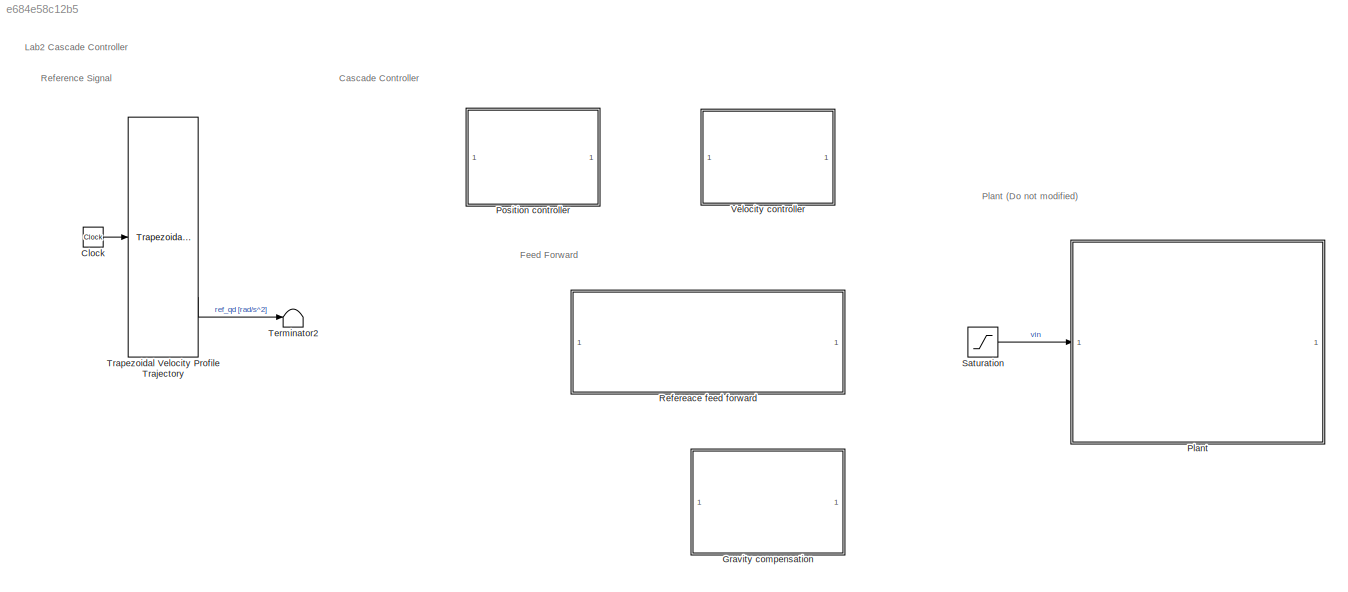
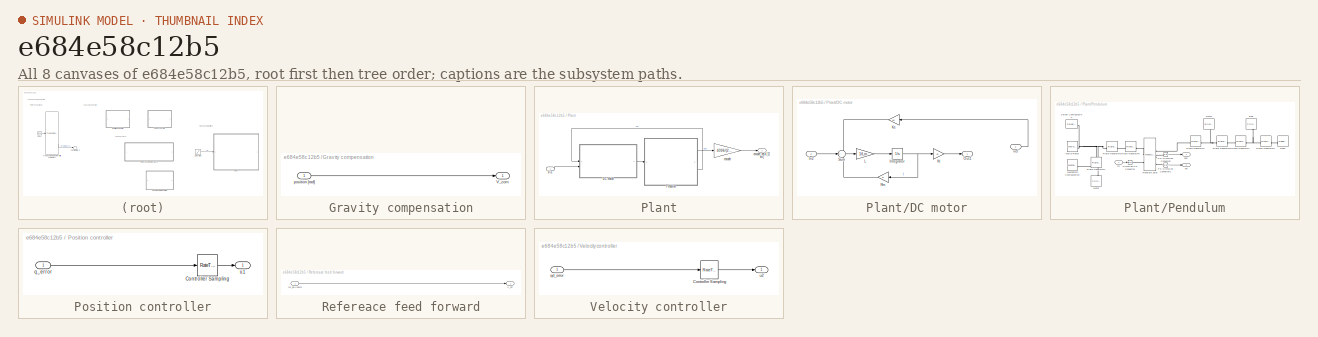
[diagram: thumbnail index - all 8 canvases of the model, root first then tree order]
MODEL slx_e684e58c12b5
KIND model
CONFIG AbsTol = auto
CONFIG EnableMultiTasking = off
CONFIG FixedStep = auto
CONFIG MaxStep = 0.01
CONFIG MinStep = auto
CONFIG RelTol = 1e-3
CONFIG SampleTimeConstraint = Unconstrained
CONFIG SolverName = ode45
CONFIG StartTime = 0.0
CONFIG StopTime = 6
BLOCK [Clock] Clock
BLOCK [SubSystem] Gravity compensation
BLOCK [Outport] Gravity compensation/V_com
BLOCK [Inport] Gravity compensation/position [rad]
BLOCK [SubSystem] Plant
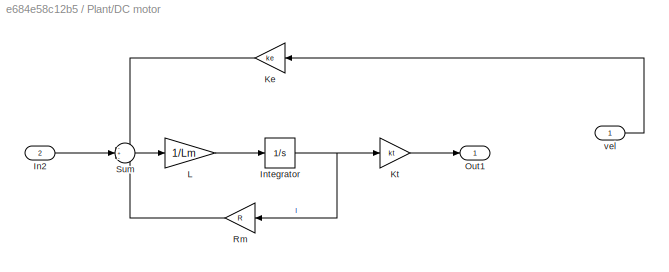
BLOCK [SubSystem] Plant/DC motor
BLOCK [Inport] Plant/DC motor/In2
  Port = 2
BLOCK [Integrator] Plant/DC motor/Integrator
BLOCK [Gain] Plant/DC motor/Ke
  Gain = ke
BLOCK [Gain] Plant/DC motor/Kt
  Gain = kt
BLOCK [Gain] Plant/DC motor/L
  Gain = 1/Lm
BLOCK [Outport] Plant/DC motor/Out1
BLOCK [Gain] Plant/DC motor/Rm
  Gain = R
BLOCK [Sum] Plant/DC motor/Sum
  Inputs = -+-
BLOCK [Inport] Plant/DC motor/vel
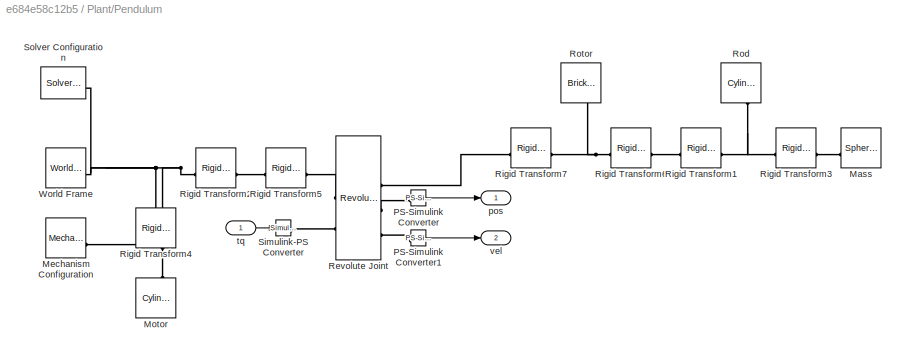
BLOCK [SubSystem] Plant/Pendulum
BLOCK [Reference] Plant/Pendulum/Mass  REF=sm_lib/Body Elements/Spherical Solid
  NameLocation = top
  SourceBlock = sm_lib/Body Elements/Spherical Solid
  SourceType = Spherical Solid
BLOCK [Reference] Plant/Pendulum/Mechanism Configuration  REF=sm_lib/Utilities/Mechanism
Configuration
  SourceBlock = sm_lib/Utilities/Mechanism\nConfiguration
  SourceType = Mechanism\nConfiguration
BLOCK [Reference] Plant/Pendulum/Motor  REF=sm_lib/Body Elements/Cylindrical Solid
  NameLocation = right
  SourceBlock = sm_lib/Body Elements/Cylindrical Solid
  SourceType = Cylindrical Solid
BLOCK [Reference] Plant/Pendulum/PS-Simulink Converter  REF=nesl_utility/PS-Simulink
Converter
  SourceBlock = nesl_utility/PS-Simulink\nConverter
  SourceType = PS-Simulink\nConverter
BLOCK [Reference] Plant/Pendulum/PS-Simulink Converter1  REF=nesl_utility/PS-Simulink
Converter
  SourceBlock = nesl_utility/PS-Simulink\nConverter
  SourceType = PS-Simulink\nConverter
BLOCK [Reference] Plant/Pendulum/Revolute Joint  REF=sm_lib/Joints/Revolute Joint
  SourceBlock = sm_lib/Joints/Revolute Joint
  SourceType = Revolute Joint
BLOCK [Reference] Plant/Pendulum/Rigid Transform1  REF=sm_lib/Frames and
Transforms/Rigid
Transform
  SourceBlock = sm_lib/Frames and\nTransforms/Rigid\nTransform
  SourceType = Rigid\nTransform
BLOCK [Reference] Plant/Pendulum/Rigid Transform2  REF=sm_lib/Frames and
Transforms/Rigid
Transform
  SourceBlock = sm_lib/Frames and\nTransforms/Rigid\nTransform
  SourceType = Rigid\nTransform
BLOCK [Reference] Plant/Pendulum/Rigid Transform3  REF=sm_lib/Frames and
Transforms/Rigid
Transform
  SourceBlock = sm_lib/Frames and\nTransforms/Rigid\nTransform
  SourceType = Rigid\nTransform
BLOCK [Reference] Plant/Pendulum/Rigid Transform4  REF=sm_lib/Frames and
Transforms/Rigid
Transform
  NameLocation = right
  SourceBlock = sm_lib/Frames and\nTransforms/Rigid\nTransform
  SourceType = Rigid\nTransform
BLOCK [Reference] Plant/Pendulum/Rigid Transform5  REF=sm_lib/Frames and
Transforms/Rigid
Transform
  SourceBlock = sm_lib/Frames and\nTransforms/Rigid\nTransform
  SourceType = Rigid\nTransform
BLOCK [Reference] Plant/Pendulum/Rigid Transform6  REF=sm_lib/Frames and
Transforms/Rigid
Transform
  SourceBlock = sm_lib/Frames and\nTransforms/Rigid\nTransform
  SourceType = Rigid\nTransform
BLOCK [Reference] Plant/Pendulum/Rigid Transform7  REF=sm_lib/Frames and
Transforms/Rigid
Transform
  SourceBlock = sm_lib/Frames and\nTransforms/Rigid\nTransform
  SourceType = Rigid\nTransform
BLOCK [Reference] Plant/Pendulum/Rod  REF=sm_lib/Body Elements/Cylindrical Solid
  NameLocation = top
  SourceBlock = sm_lib/Body Elements/Cylindrical Solid
  SourceType = Cylindrical Solid
BLOCK [Reference] Plant/Pendulum/Rotor  REF=sm_lib/Body Elements/Brick Solid
  NameLocation = top
  SourceBlock = sm_lib/Body Elements/Brick Solid
  SourceType = Brick Solid
BLOCK [Reference] Plant/Pendulum/Simulink-PS Converter  REF=nesl_utility/Simulink-PS
Converter
  SourceBlock = nesl_utility/Simulink-PS\nConverter
  SourceType = Simulink-PS\nConverter
BLOCK [Reference] Plant/Pendulum/Solver Configuration  REF=nesl_utility/Solver
Configuration
  SourceBlock = nesl_utility/Solver\nConfiguration
  SourceType = Solver\nConfiguration
BLOCK [Reference] Plant/Pendulum/World Frame  REF=sm_lib/Frames and
Transforms/World Frame
  SourceBlock = sm_lib/Frames and\nTransforms/World Frame
  SourceType = World Frame
BLOCK [Outport] Plant/Pendulum/pos
  NameLocation = right
BLOCK [Inport] Plant/Pendulum/tq
BLOCK [Outport] Plant/Pendulum/vel
  NameLocation = right
  Port = 2
BLOCK [Inport] Plant/Vin
BLOCK [Gain] Plant/encoder
  Gain = 4096/(2*pi)
BLOCK [Outport] Plant/encoder_data [12 bit]
BLOCK [SubSystem] Position controller
BLOCK [RateTransition] Position controller/Controller Sampling
  OutPortSampleTime = sampling_time
BLOCK [Inport] Position controller/q_error
BLOCK [Outport] Position controller/u1
BLOCK [SubSystem] Refereace feed forward
BLOCK [Outport] Refereace feed forward/V_FF
BLOCK [Inport] Refereace feed forward/ref_qd [rad//s]
BLOCK [Saturate] Saturation
  LowerLimit = -12
  UpperLimit = 12
BLOCK [Terminator] Terminator2
BLOCK [Reference] Trapezoidal Velocity Profile Trajectory  REF=robotcorelib/Trapezoidal Velocity Profile Trajectory
  LibrarySourceBlock = robotutilslib/Trapezoidal Velocity Profile Trajectory
  SourceBlock = robotcorelib/Trapezoidal Velocity Profile Trajectory
  SourceType = robotics.slcore.internal.block.TrapVelTrajSys
BLOCK [SubSystem] Velocity controller
BLOCK [RateTransition] Velocity controller/Controller Sampling
  OutPortSampleTime = sampling_time
BLOCK [Inport] Velocity controller/qd_error
BLOCK [Outport] Velocity controller/u2
ANNOTATION (root): Cascade Controller
ANNOTATION (root): Feed Forward
ANNOTATION (root): Lab2 Cascade Controller
ANNOTATION (root): Plant (Do not modified)
ANNOTATION (root): Reference Signal
LINE Clock:1 -> Trapezoidal Velocity Profile Trajectory:1
LINE Gravity compensation/position [rad]:1 -> Gravity compensation/V_com:1
LINE Plant/DC motor/In2:1 -> Plant/DC motor/Sum:2
NET Plant/DC motor/Integrator:1 -> Plant/DC motor/Kt:1, Plant/DC motor/Rm:1
LINE Plant/DC motor/Ke:1 -> Plant/DC motor/Sum:1
LINE Plant/DC motor/Kt:1 -> Plant/DC motor/Out1:1
LINE Plant/DC motor/L:1 -> Plant/DC motor/Integrator:1
LINE Plant/DC motor/Rm:1 -> Plant/DC motor/Sum:3
LINE Plant/DC motor/Sum:1 -> Plant/DC motor/L:1
LINE Plant/DC motor/vel:1 -> Plant/DC motor/Ke:1
LINE Plant/DC motor:1 -> Plant/Pendulum:1
LINE Plant/Pendulum/PS-Simulink Converter1:1 -> Plant/Pendulum/vel:1
LINE Plant/Pendulum/PS-Simulink Converter:1 -> Plant/Pendulum/pos:1
LINE Plant/Pendulum/tq:1 -> Plant/Pendulum/Simulink-PS Converter:1
LINE Plant/Pendulum:1 -> Plant/encoder:1
LINE Plant/Pendulum:2 -> Plant/DC motor:1
LINE Plant/Vin:1 -> Plant/DC motor:2
LINE Plant/encoder:1 -> Plant/encoder_data [12 bit]:1
LINE Position controller/Controller Sampling:1 -> Position controller/u1:1
LINE Position controller/q_error:1 -> Position controller/Controller Sampling:1
LINE Refereace feed forward/ref_qd [rad//s]:1 -> Refereace feed forward/V_FF:1
LINE Saturation:1 -> Plant:1
LINE Trapezoidal Velocity Profile Trajectory:3 -> Terminator2:1
LINE Velocity controller/Controller Sampling:1 -> Velocity controller/u2:1
LINE Velocity controller/qd_error:1 -> Velocity controller/Controller Sampling:1
PLINE Plant/Pendulum/Mass:RConn1 -- Plant/Pendulum/Rigid Transform3:RConn1
PNET net1: Plant/Pendulum/Mechanism Configuration:RConn1 -- Plant/Pendulum/Rigid Transform2:LConn1 -- Plant/Pendulum/Rigid Transform4:LConn1 -- Plant/Pendulum/Solver Configuration:RConn1 -- Plant/Pendulum/World Frame:RConn1
PLINE Plant/Pendulum/Motor:RConn1 -- Plant/Pendulum/Rigid Transform4:RConn1
PLINE Plant/Pendulum/PS-Simulink Converter1:LConn1 -- Plant/Pendulum/Revolute Joint:RConn3
PLINE Plant/Pendulum/PS-Simulink Converter:LConn1 -- Plant/Pendulum/Revolute Joint:RConn2
PLINE Plant/Pendulum/Revolute Joint:LConn1 -- Plant/Pendulum/Rigid Transform5:RConn1
PLINE Plant/Pendulum/Revolute Joint:LConn2 -- Plant/Pendulum/Simulink-PS Converter:RConn1
PLINE Plant/Pendulum/Revolute Joint:RConn1 -- Plant/Pendulum/Rigid Transform7:LConn1
PLINE Plant/Pendulum/Rigid Transform1:LConn1 -- Plant/Pendulum/Rigid Transform6:RConn1
PNET net2: Plant/Pendulum/Rigid Transform1:RConn1 -- Plant/Pendulum/Rigid Transform3:LConn1 -- Plant/Pendulum/Rod:RConn1
PLINE Plant/Pendulum/Rigid Transform2:RConn1 -- Plant/Pendulum/Rigid Transform5:LConn1
PNET net3: Plant/Pendulum/Rigid Transform6:LConn1 -- Plant/Pendulum/Rigid Transform7:RConn1 -- Plant/Pendulum/Rotor:RConn1
note: NET lines group one-source signal fan-out (src -> all destinations, sorted); 1:1 wires keep LINE; PNET lines group multi-terminal physical nets as a canonical sorted terminal list (undirected conserving connections); 2-terminal nets keep the pairwise PLINE form
